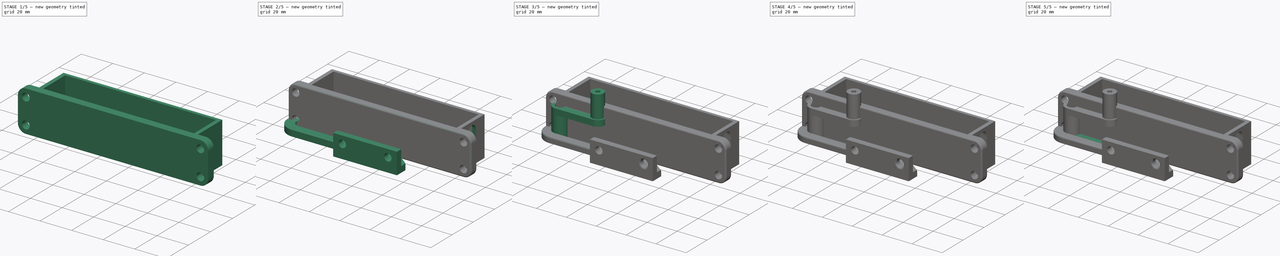
[diagram: build sequence overview — one tinted view per stage of 5, left to right]
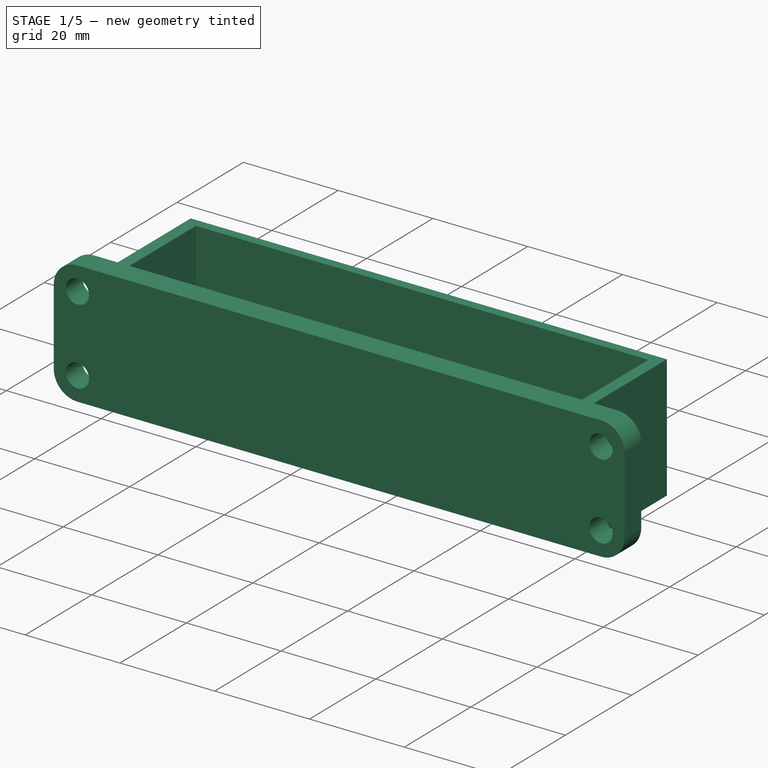
[diagram: stage 1 of 5 — iso view after this stage's code; geometry added in this stage tinted green]
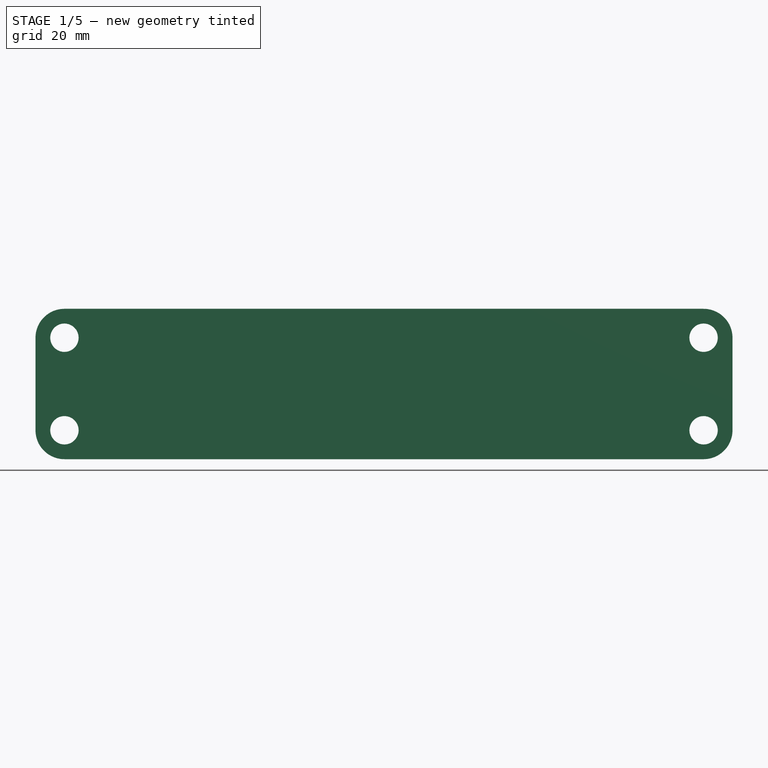
[diagram: stage 1 of 5 — front view after this stage's code; geometry added in this stage tinted green]
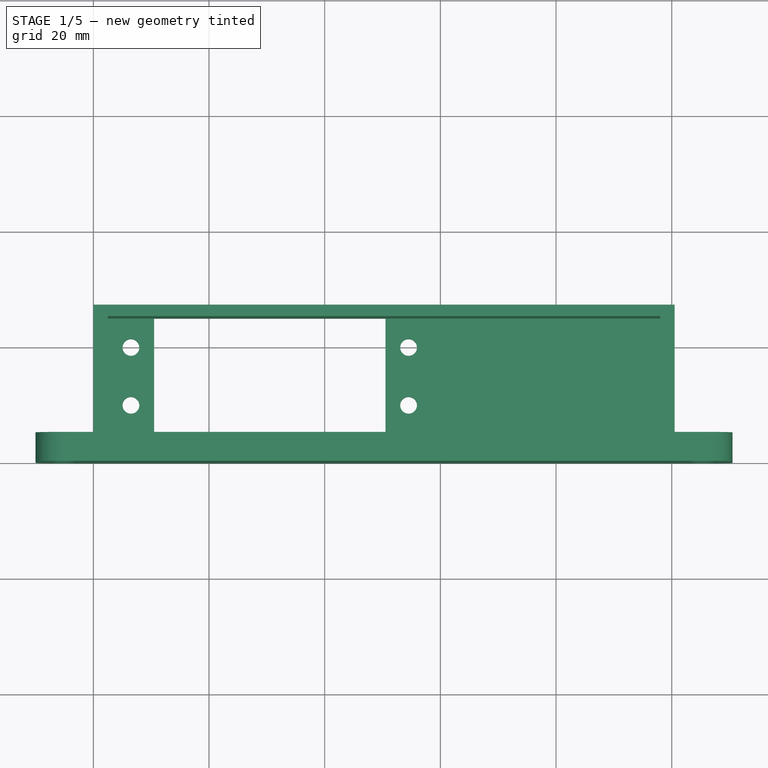
[diagram: stage 1 of 5 — top view after this stage's code; geometry added in this stage tinted green]
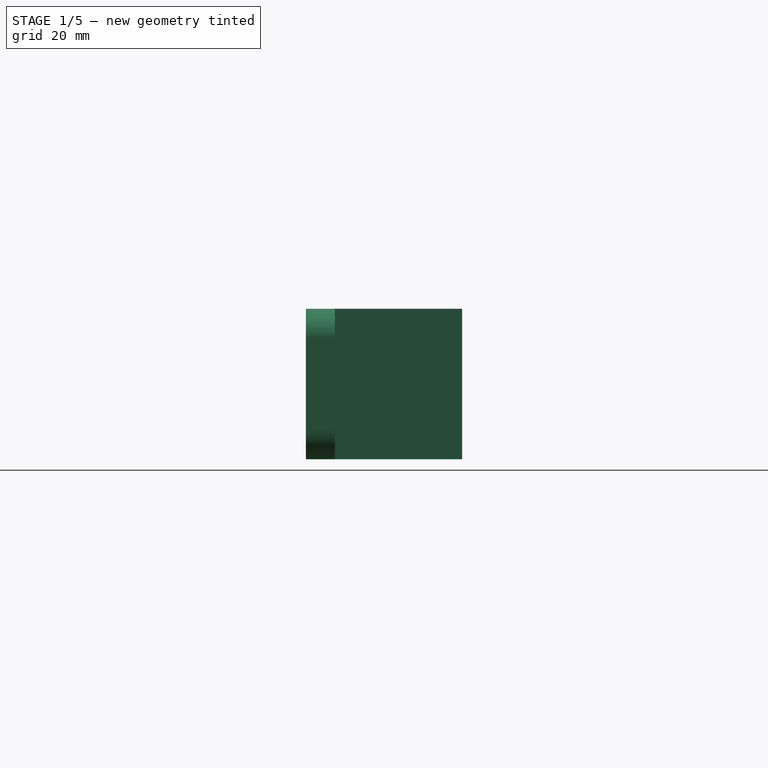
[diagram: stage 1 of 5 — right view after this stage's code; geometry added in this stage tinted green]
FCSTD DOCUMENT  (FreeCAD 0.20R29177 +426 (Git))
Label: blindOpener
License: All rights reserved
LicenseURL: http://en.wikipedia.org/wiki/All_rights_reserved
objects: Sketcher::SketchObject×18, PartDesign::Pad×14, PartDesign::Body×6, PartDesign::Fillet×5, PartDesign::Pocket×2, Spreadsheet::Sheet×1, PartDesign::Revolution×1, PartDesign::PolarPattern×1
note: 69 computed .brp shape members not serialized (recipe doc carries the construction recipe); baked Part::Feature solids carry a one-line shape summary decoded from their .brp

FEATURE [Spreadsheet::Sheet] Spreadsheet
  cells = A2=servoWidth; B2(servoWidth)=40; A3=servoHeight; B3(servoHeight)=20; A4=servoScrewYDist; B4(servoScrewYDist)=10; A5=servoToFirstScrew; B5(servoToFirstScrew)=5; A6=servoArmHolderWidth; B6(servoArmHolderWidth)=8; A7=servoHolderThickness; B7(servoHolderThickness)=3; A8=serverToFirstScrewDistY; B8(serverToFirstScrewDistY)==servoHeight + servoHolderThickness - servoToFirstScrew; C8=calculated; A10=m3ScrewRTight; B10(m3ScrewRTight)=1.45; A11=servoArmHolderSideGuardWidth; B11(servoArmHolderSideGuardWidth)==2 + 0.5; A12=totoalServerArmSideWidth; B12(totoalServerArmSideWidth)==servoArmHolderSideGuardWidth + servoArmHolderWidth; D12=servoArmJoinLen; E12(servoArmJoinLen)=15; A13=totalHoderHeight; B13(totalHoderHeight)==servoHolderBottomHeight + servoHeight; A15=totalHolderWidth; B15(totalHolderWidth)==servoWidth + totoalServerArmSideWidth * 2; A16=servoHolderScrewToInnerX; B16(servoHolderScrewToInnerX)=4; A18=servoHolderBottomHeight; B18(servoHolderBottomHeight)==servoHolderThickness + 2; A20=servoBottomSupportLen; B20(servoBottomSupportLen)=6; A21=servoBottomAttachmentLen; B21(servoBottomAttachmentLen)=10; A24=servoArmHeadHoleR; B24(servoArmHeadHoleR)==6 / 2 - 0.05; D24=3 is too lose; E24=2.90 is a bit too tight; A25=servoArmHeadScrewR; B25(servoArmHeadScrewR)=1.5; A26=servoArmHeadOurterR; B26(servoArmHeadOurterR)==servoArmHeadHoleR + 2; A27=servoArmLen; B27(servoArmLen)=25; A28=servoArmThickness; B28(servoArmThickness)=4; A29=servoArmHeadHoleOverLip; B29(servoArmHeadHoleOverLip)=0.2; A31=servoArmPushRodR; B31(servoArmPushRodR)=4; A32=servoArmPushRodLen; B32(servoArmPushRodLen)==30 + servoArmThickness; A35=controlArmLen; B35(controlArmLen)=30; A36=m3PassFreeR; B36(m3PassFreeR)==m3ScrewRTight + 0.5; A40=bottomPlatWidth; B40(bottomPlatWidth)=40; A41=bottomPlatHeight; B41(bottomPlatHeight)=10; A42=bottomPlatScrewY; B42(bottomPlatScrewY)=6; A43=bottomPlatPad; B43(bottomPlatPad)=3; A44=bottomPlatJointHeight; B44(bottomPlatJointHeight)==servoArmPushRodR + bottomPlatPad + 2; A47=raspberryPiLen; B47(raspberryPiLen)=50; A49=totalHolderWidthWithPiCase; B49(totalHolderWidthWithPiCase)==totalHolderWidth + raspberryPiLen - totoalServerArmSideWidth; A50=totalHolderHeightWithPiCase; B50(totalHolderHeightWithPiCase)==servoBottomSupportLen + servoBottomAttachmentLen * 2; A54=bottomAttachmentScrewHoleYLower; B54(bottomAttachmentScrewHoleYLower)==servoBottomSupportLen + servoBottomAttachmentLen / 2; A55=bottomAttachmentScrewHoleUpper; B55(bottomAttachmentScrewHoleUpper)==totalHolderHeightWithPiCase - servoBottomAttachmentLen / 2; A59=slidingPlateSlideGap; B59(slidingPlateSlideGap)==servoArmPushRodR + 0.25; A60=slidingPlateSlideLen; B60(slidingPlateSlideLen)==servoArmLen + 20; D60=was servoArmLen + 10=35, changed to +20; A61=slidingPlateSliderWidth; B61(slidingPlateSliderWidth)=6; A62=slidingPlateSliderPad; B62(slidingPlateSliderPad)=4; A63=slidingPlateAttachementOverWidth; B63(slidingPlateAttachementOverWidth)=20; D63=was 40, too long; A64=slidingPlateBaseAttachementScrewToSide; B64(slidingPlateBaseAttachementScrewToSide)=6; A65=slidingPlateAttachementStartPos; B65(slidingPlateAttachementStartPos)==slidingPlateSlideLen / 2 + 10; D65=slidingPlatAttachmentLegHeight; E65(slidingPlatAttachmentLegHeight)=8; A66=slidingPlateAttachmentWidth; B66(slidingPlateAttachmentWidth)=42; A68=woodScrewPassR; B68(woodScrewPassR)=2.45; A71=raspberryPiWidth; B71(raspberryPiWidth)=18; A72=raspberryPiHeight; B72(raspberryPiHeight)=46; A75=raspberryPiCaseBottomHoleHeight; B75(raspberryPiCaseBottomHoleHeight)=10
FEATURE [Sketcher::SketchObject] Sketch  label="SketchServoPlat"
  FullyConstrained = true
  MapMode = 5
  Support = -> [XY_Plane]
  expr: Constraints[18] = Spreadsheet.totoalServerArmSideWidth
  expr: Constraints[19] = Spreadsheet.servoHeight
  expr: Constraints[20] = Spreadsheet.servoHeight
  expr: Constraints[21] = Spreadsheet.servoWidth
  expr: Constraints[22] = Spreadsheet.servoHolderBottomHeight
  expr: Constraints[25] = Spreadsheet.servoHolderBottomHeight + Spreadsheet.servoToFirstScrew
  expr: Constraints[26] = Spreadsheet.servoHolderBottomHeight + Spreadsheet.servoToFirstScrew
  expr: Constraints[31] = Spreadsheet.m3ScrewRTight
  expr: Constraints[32] = Spreadsheet.m3ScrewRTight
  expr: Constraints[33] = Spreadsheet.m3ScrewRTight
  expr: Constraints[34] = Spreadsheet.m3ScrewRTight
  expr: Constraints[51] = Spreadsheet.servoHolderScrewToInnerX
  expr: Constraints[52] = Spreadsheet.servoHolderScrewToInnerX
  expr: Constraints[53] = Spreadsheet.servoScrewYDist
  expr: Constraints[54] = Spreadsheet.servoScrewYDist
  expr: Constraints[55] = Spreadsheet.raspberryPiLen
  sketch-geometry (22):
    g0: LineSegment StartX=0 StartY=25 StartZ=0 EndX=10.5 EndY=25 EndZ=0
    g1: LineSegment StartX=100.5 StartY=25 StartZ=0 EndX=100.5 EndY=0 EndZ=0
    g2: LineSegment StartX=100.5 StartY=0 StartZ=0 EndX=0 EndY=0 EndZ=0
    g3: LineSegment StartX=0 StartY=0 StartZ=0 EndX=0 EndY=25 EndZ=0
    g4: LineSegment StartX=50.5 StartY=25 StartZ=0 EndX=50.5 EndY=5 EndZ=0
    g5: LineSegment StartX=50.5 StartY=5 StartZ=0 EndX=10.5 EndY=5 EndZ=0
    g6: LineSegment StartX=10.5 StartY=5 StartZ=0 EndX=10.5 EndY=25 EndZ=0
    g7: LineSegment StartX=50.5 StartY=25 StartZ=0 EndX=100.5 EndY=25 EndZ=0
    g8: LineSegment StartX=6.5 StartY=20 StartZ=0 EndX=6.5 EndY=10 EndZ=0
    g9: LineSegment StartX=54.5 StartY=20 StartZ=0 EndX=54.5 EndY=10 EndZ=0
    g10: Circle CenterX=6.5 CenterY=20 CenterZ=0 NormalX=0 NormalY=0 NormalZ=1 AngleXU=0 Radius=1.45
    g11: Circle CenterX=6.5 CenterY=10 CenterZ=0 NormalX=0 NormalY=0 NormalZ=1 AngleXU=0 Radius=1.45
    g12: Circle CenterX=54.5 CenterY=20 CenterZ=0 NormalX=0 NormalY=0 NormalZ=1 AngleXU=0 Radius=1.45
    g13: Circle CenterX=54.5 CenterY=10 CenterZ=0 NormalX=0 NormalY=0 NormalZ=1 AngleXU=0 Radius=1.45
    g14: LineSegment StartX=0 StartY=25 StartZ=0 EndX=0 EndY=0 EndZ=0
    g15: LineSegment StartX=0 StartY=0 StartZ=0 EndX=100.5 EndY=0 EndZ=0
    g16: LineSegment StartX=100.5 StartY=0 StartZ=0 EndX=100.5 EndY=25 EndZ=0
    g17: LineSegment StartX=100.5 StartY=25 StartZ=0 EndX=50.5 EndY=25 EndZ=0
    g18: LineSegment StartX=50.5 StartY=25 StartZ=0 EndX=50.5 EndY=5 EndZ=0
    g19: LineSegment StartX=50.5 StartY=5 StartZ=0 EndX=10.5 EndY=5 EndZ=0
    g20: LineSegment StartX=10.5 StartY=5 StartZ=0 EndX=10.5 EndY=25 EndZ=0
    g21: LineSegment StartX=10.5 StartY=25 StartZ=0 EndX=0 EndY=25 EndZ=0
  constraints (56):
    c: Coincident(g7,g1)
    c: Coincident(g1,g2)
    c: Coincident(g2,g3)
    c: Coincident(g3,g0)
    c: Horizontal(g0)
    c: Horizontal(g2)
    c: Vertical(g1)
    c: Vertical(g3)
    c: PointOnObject(g0,g-2)
    c: PointOnObject(g1,g-1)
    c: Coincident(g4,g5)
    c: Coincident(g5,g6)
    c: Horizontal(g5)
    c: Vertical(g4)
    c: Vertical(g6)
    c: Coincident(g6,g0)
    c: Coincident(g4,g7)
    c: Horizontal(g7)
    c: DistanceX(g0,g0) = 10.5
    c: DistanceY(g6,g6) = 20
    c: DistanceY(g4,g4) = 20
    c: DistanceX(g5,g5) = 40
    c: DistanceY(g2,g5) = 5
    c: Vertical(g8)
    c: Vertical(g9)
    c: DistanceY(g2,g8) = 10
    c: DistanceY(g2,g9) = 10
    c: Coincident(g10,g8)
    c: Coincident(g11,g8)
    c: Coincident(g12,g9)
    c: Coincident(g13,g9)
    c: Radius(g10) = 1.45
    c: Radius(g11) = 1.45
    c: Radius(g12) = 1.45
    c: Radius(g13) = 1.45
    c: Coincident(g14,g0)
    c: Coincident(g14,g2)
    c: Coincident(g15,g14)
    c: Coincident(g15,g1)
    c: Coincident(g16,g15)
    c: Coincident(g16,g1)
    c: Coincident(g17,g16)
    c: Coincident(g17,g4)
    c: Coincident(g18,g17)
    c: Coincident(g18,g4)
    c: Coincident(g19,g18)
    c: Coincident(g19,g5)
    c: Coincident(g20,g19)
    c: Coincident(g20,g0)
    c: Coincident(g21,g20)
    c: Coincident(g21,g14)
    c: DistanceX(g10,g20) = 4
    c: DistanceX(g17,g12) = 4
    c: DistanceY(g8,g8) = 10
    c: DistanceY(g9,g9) = 10
    c: DistanceX(g17,g17) = 50
FEATURE [PartDesign::Pad] Pad
  Direction = (0,0,1)
  Length = 3
  Length2 = 10
  Profile = -> Sketch
  ReferenceAxis = -> Sketch [N_Axis]
  Type = 0
  expr: Length = Spreadsheet.servoHolderThickness
FEATURE [Sketcher::SketchObject] Sketch001  label="Sketch001SeperationWalls"
  FullyConstrained = true
  MapMode = 5
  Support = -> [XY_Plane]
  expr: Constraints[11] = Spreadsheet.totalHolderWidthWithPiCase
  expr: Constraints[19] = Spreadsheet.servoArmHolderSideGuardWidth
  expr: Constraints[2] = Spreadsheet.servoArmHolderSideGuardWidth
  expr: Constraints[3] = Spreadsheet.totalHoderHeight
  expr: Constraints[4] = Spreadsheet.totalHoderHeight + 2
  sketch-geometry (8):
    g0: LineSegment StartX=2.5 StartY=25 StartZ=0 EndX=2.5 EndY=0 EndZ=0
    g1: LineSegment StartX=2.5 StartY=0 StartZ=0 EndX=0 EndY=0 EndZ=0
    g2: LineSegment StartX=0 StartY=0 StartZ=0 EndX=0 EndY=27 EndZ=0
    g3: LineSegment StartX=0 StartY=27 StartZ=0 EndX=100.5 EndY=27 EndZ=0
    g4: LineSegment StartX=100.5 StartY=27 StartZ=0 EndX=100.5 EndY=0 EndZ=0
    g5: LineSegment StartX=100.5 StartY=0 StartZ=0 EndX=98 EndY=0 EndZ=0
    g6: LineSegment StartX=98 StartY=0 StartZ=0 EndX=98 EndY=25 EndZ=0
    g7: LineSegment StartX=2.5 StartY=25 StartZ=0 EndX=98 EndY=25 EndZ=0
  constraints (23):
    c: Coincident(g0,g1)
    c: Vertical(g0)
    c: DistanceX(g1,g0) = 2.5
    c: DistanceY(g0,g0) = 25
    c: DistanceY(g1,g2) = 27
    c: Coincident(g2,g1)
    c: Vertical(g2)
    c: Coincident(g1,g-1)
    c: Horizontal(g1)
    c: Coincident(g3,g2)
    c: Horizontal(g3)
    c: DistanceX(g3,g3) = 100.5
    c: Coincident(g4,g3)
    c: PointOnObject(g4,g-1)
    c: Vertical(g4)
    c: Coincident(g5,g4)
    c: PointOnObject(g5,g-1)
    c: Coincident(g6,g5)
    c: Vertical(g6)
    c: DistanceX(g5,g5) = 2.5
    c: Coincident(g7,g0)
    c: Coincident(g7,g6)
    c: Horizontal(g7)
FEATURE [Sketcher::SketchObject] Sketch002  label="Sketch002BottomWall"
  FullyConstrained = true
  MapMode = 5
  Support = -> [XY_Plane]
  expr: Constraints[10] = Spreadsheet.servoHolderBottomHeight
  expr: Constraints[9] = Spreadsheet.totalHolderWidthWithPiCase
  sketch-geometry (4):
    g0: LineSegment StartX=0 StartY=0 StartZ=0 EndX=100.5 EndY=0 EndZ=0
    g1: LineSegment StartX=100.5 StartY=0 StartZ=0 EndX=100.5 EndY=5 EndZ=0
    g2: LineSegment StartX=100.5 StartY=5 StartZ=0 EndX=0 EndY=5 EndZ=0
    g3: LineSegment StartX=0 StartY=5 StartZ=0 EndX=0 EndY=0 EndZ=0
  constraints (11):
    c: Coincident(g0,g1)
    c: Coincident(g1,g2)
    c: Coincident(g2,g3)
    c: Coincident(g3,g0)
    c: Horizontal(g0)
    c: Horizontal(g2)
    c: Vertical(g1)
    c: Vertical(g3)
    c: Coincident(g0,g-1)
    c: DistanceX(g0,g0) = 100.5
    c: DistanceY(g3,g3) = 5
FEATURE [PartDesign::Pad] Pad002
  BaseFeature = -> Pad
  Direction = (0,0,1)
  Length = 6
  Length2 = 10
  Profile = -> Sketch002
  ReferenceAxis = -> Sketch002 [N_Axis]
  Type = 0
  expr: Length = Spreadsheet.servoBottomSupportLen
FEATURE [Sketcher::SketchObject] Sketch003  label="Sketch003MidSrvslip"
  AttachmentOffset = pos=(0,0,3) rot=(0,0,1;0rad)
  FullyConstrained = true
  MapMode = 5
  Placement = pos=(0,0,3) rot=(0,0,1;0rad)
  Support = -> [XY_Plane]
  expr: .AttachmentOffset.Base.z = Spreadsheet.servoHolderThickness
  expr: Constraints[10] = Spreadsheet.servoHolderBottomHeight + Spreadsheet.servoHeight / 2 + 0.5
  expr: Constraints[11] = Spreadsheet.totalHolderWidth
  expr: Constraints[9] = Spreadsheet.servoHolderBottomHeight + Spreadsheet.servoHeight / 2 - 0.5
  sketch-geometry (4):
    g0: LineSegment StartX=0 StartY=15.5 StartZ=0 EndX=61 EndY=15.5 EndZ=0
    g1: LineSegment StartX=61 StartY=15.5 StartZ=0 EndX=61 EndY=14.5 EndZ=0
    g2: LineSegment StartX=61 StartY=14.5 StartZ=0 EndX=0 EndY=14.5 EndZ=0
    g3: LineSegment StartX=0 StartY=14.5 StartZ=0 EndX=0 EndY=15.5 EndZ=0
  constraints (12):
    c: Coincident(g0,g1)
    c: Coincident(g1,g2)
    c: Coincident(g2,g3)
    c: Coincident(g3,g0)
    c: Horizontal(g0)
    c: Horizontal(g2)
    c: Vertical(g1)
    c: Vertical(g3)
    c: PointOnObject(g0,g-2)
    c: DistanceY(g-1,g2) = 14.5
    c: DistanceY(g-1,g0) = 15.5
    c: DistanceX(g2,g2) = 61
FEATURE [PartDesign::Pocket] Pocket
  BaseFeature = -> Pad002
  Direction = (0,0,-1)
  Length = 1
  Length2 = 5
  Profile = -> Sketch003
  ReferenceAxis = -> Sketch003 [N_Axis]
  Type = 0
FEATURE [PartDesign::Pad] Pad003
  BaseFeature = -> Pocket
  Direction = (0,0,1)
  Length = 26
  Length2 = 10
  Profile = -> Sketch001
  ReferenceAxis = -> Sketch001 [N_Axis]
  Type = 0
  expr: Length = Spreadsheet.totalHolderHeightWithPiCase
FEATURE [Sketcher::SketchObject] Sketch004  label="Sketch004BottomAttachement"
  FullyConstrained = false
  MapMode = 5
  Placement = pos=(0,0,0) rot=(1,0,0;1.5708rad)
  Support = -> [XZ_Plane]
  expr: Constraints[0] = Spreadsheet.totalHolderWidthWithPiCase + Spreadsheet.servoBottomAttachmentLen
  expr: Constraints[13] = Spreadsheet.servoBottomAttachmentLen / 2
  expr: Constraints[14] = Spreadsheet.bottomAttachmentScrewHoleUpper
  expr: Constraints[16] = Spreadsheet.servoBottomAttachmentLen
  expr: Constraints[1] = Spreadsheet.servoBottomAttachmentLen / 2
  expr: Constraints[20] = Spreadsheet.servoBottomAttachmentLen / 2
  expr: Constraints[22] = Spreadsheet.servoBottomAttachmentLen / 2
  expr: Constraints[2] = Spreadsheet.m3ScrewRTight + 1
  expr: Constraints[3] = Spreadsheet.woodScrewPassR
  sketch-geometry (17):
    g0: LineSegment StartX=110.5 StartY=21 StartZ=0 EndX=110.5 EndY=5 EndZ=0
    g1: Circle CenterX=-5 CenterY=5 CenterZ=0 NormalX=0 NormalY=0 NormalZ=1 AngleXU=0 Radius=2.45
    g2: Circle CenterX=105.5 CenterY=5 CenterZ=0 NormalX=0 NormalY=0 NormalZ=1 AngleXU=0 Radius=2.45
    g3: Circle CenterX=-5 CenterY=21 CenterZ=0 NormalX=0 NormalY=0 NormalZ=1 AngleXU=0 Radius=2.45
    g4: Circle CenterX=105.5 CenterY=21 CenterZ=0 NormalX=0 NormalY=0 NormalZ=1 AngleXU=0 Radius=2.45
    g5: LineSegment StartX=-5 StartY=5 StartZ=0 EndX=-5 EndY=21 EndZ=0
    g6: LineSegment StartX=-5 StartY=21 StartZ=0 EndX=105.5 EndY=21 EndZ=0
    g7: LineSegment StartX=105.5 StartY=21 StartZ=0 EndX=105.5 EndY=5 EndZ=0
    g8: LineSegment StartX=-10 StartY=21 StartZ=0 EndX=-10 EndY=5 EndZ=0
    g9: LineSegment StartX=105.5 StartY=5 StartZ=0 EndX=-5 EndY=5 EndZ=0
    g10: LineSegment StartX=-10 StartY=-0.424397 StartZ=0 EndX=110.5 EndY=-0.424397 EndZ=0
    g11: LineSegment StartX=-5 StartY=0 StartZ=0 EndX=105.5 EndY=0 EndZ=0
    g12: LineSegment StartX=-5 StartY=26 StartZ=0 EndX=105.5 EndY=26 EndZ=0
    g13: ArcOfCircle CenterX=-5 CenterY=21 CenterZ=0 NormalX=0 NormalY=0 NormalZ=1 AngleXU=0 Radius=5 StartAngle=1.5708 EndAngle=3.14159
    g14: ArcOfCircle CenterX=-5 CenterY=5 CenterZ=0 NormalX=0 NormalY=0 NormalZ=1 AngleXU=0 Radius=5 StartAngle=3.14159 EndAngle=4.71239
    g15: ArcOfCircle CenterX=105.5 CenterY=21 CenterZ=0 NormalX=0 NormalY=0 NormalZ=1 AngleXU=0 Radius=5 StartAngle=0 EndAngle=1.5708
    g16: ArcOfCircle CenterX=105.5 CenterY=5 CenterZ=0 NormalX=0 NormalY=0 NormalZ=1 AngleXU=0 Radius=5 StartAngle=4.71239 EndAngle=6.28319
  constraints (38):
    c: DistanceX(g-1,g10) = 110.5
    c: DistanceX(g2,g10) = 5
    c: Radius(g1) = 2.45
    c: Radius(g2) = 2.45
    c: Equal(g3,g1)
    c: Coincident(g5,g1)
    c: Coincident(g5,g3)
    c: Coincident(g6,g3)
    c: Coincident(g6,g4)
    c: Coincident(g7,g4)
    c: Coincident(g7,g2)
    c: Vertical(g7)
    c: Equal(g4,g3)
    c: DistanceY(g-1,g1) = 5
    c: DistanceY(g-1,g3) = 21
    c: Vertical(g8)
    c: DistanceX(g10,g-1) = 10
    c: Coincident(g9,g2)
    c: Coincident(g9,g1)
    c: Horizontal(g9)
    c: DistanceX(g1,g-1) = 5
    c: Coincident(g13,g3)
    c: Radius(g13) = 5
    c: Horizontal(g12)
    c: Coincident(g14,g1)
    c: Equal(g13,g14)
    c: Coincident(g15,g4)
    c: Tangent(g0,g15) = 1.5708
    c: Coincident(g16,g2)
    c: Horizontal(g6)
    c: Tangent(g15,g12) = 1.5708
    c: Tangent(g16,g0) = 1.5708
    c: Tangent(g16,g11) = -1.5708
    c: Horizontal(g11)
    c: Tangent(g13,g12) = 1.5708
    c: Tangent(g8,g13) = -1.5708
    c: Tangent(g8,g14) = -1.5708
    c: Tangent(g11,g14) = -1.5708
FEATURE [PartDesign::Pad] Pad004
  BaseFeature = -> Pad003
  Direction = (0,-1,-2e-16)
  Length = 5
  Length2 = 10
  Profile = -> Sketch004
  ReferenceAxis = -> Sketch004 [N_Axis]
  Reversed = true
  Type = 0
  expr: Length = Spreadsheet.servoHolderBottomHeight
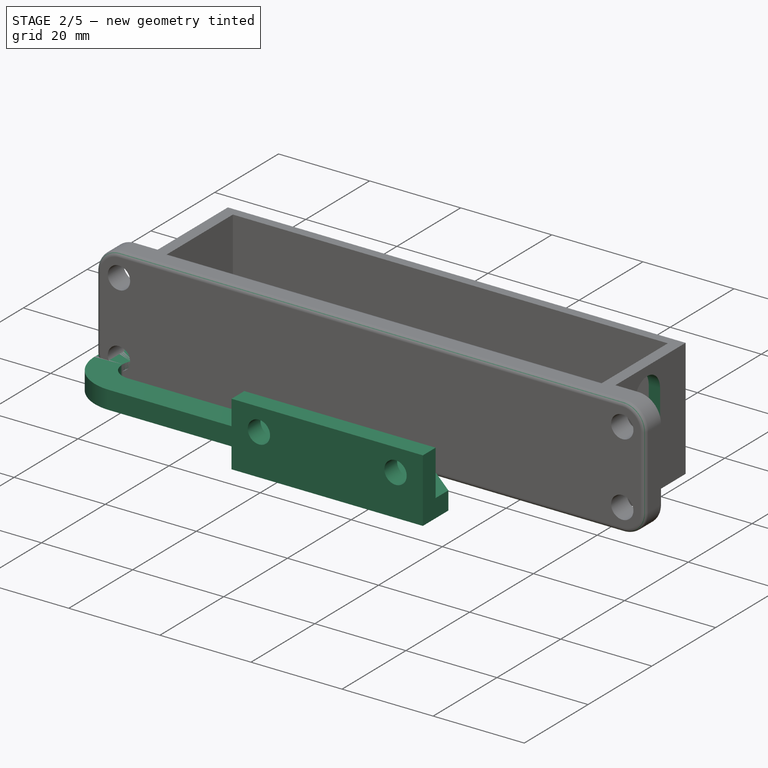
[diagram: stage 2 of 5 — iso view after this stage's code; geometry added in this stage tinted green]
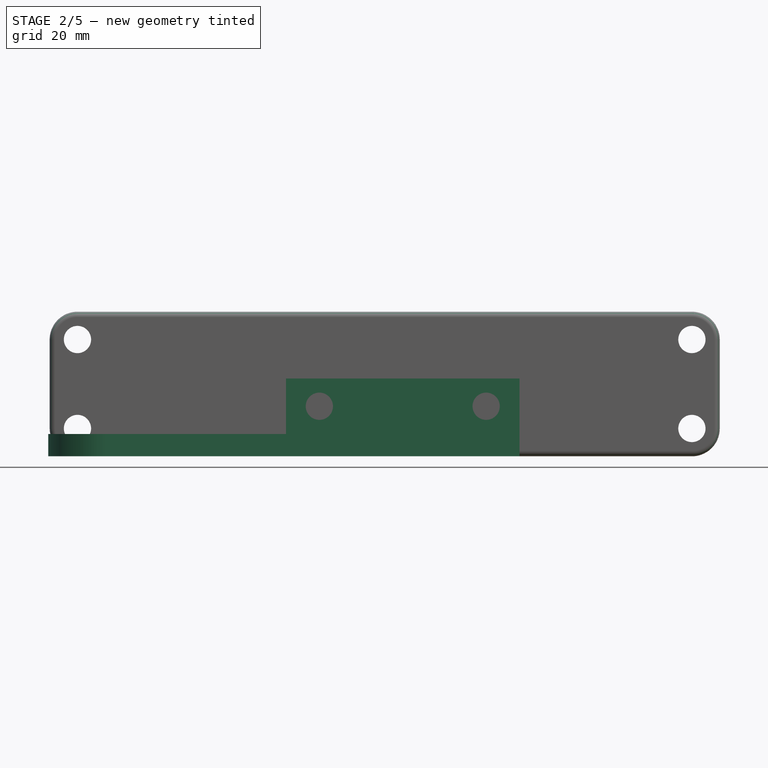
[diagram: stage 2 of 5 — front view after this stage's code; geometry added in this stage tinted green]
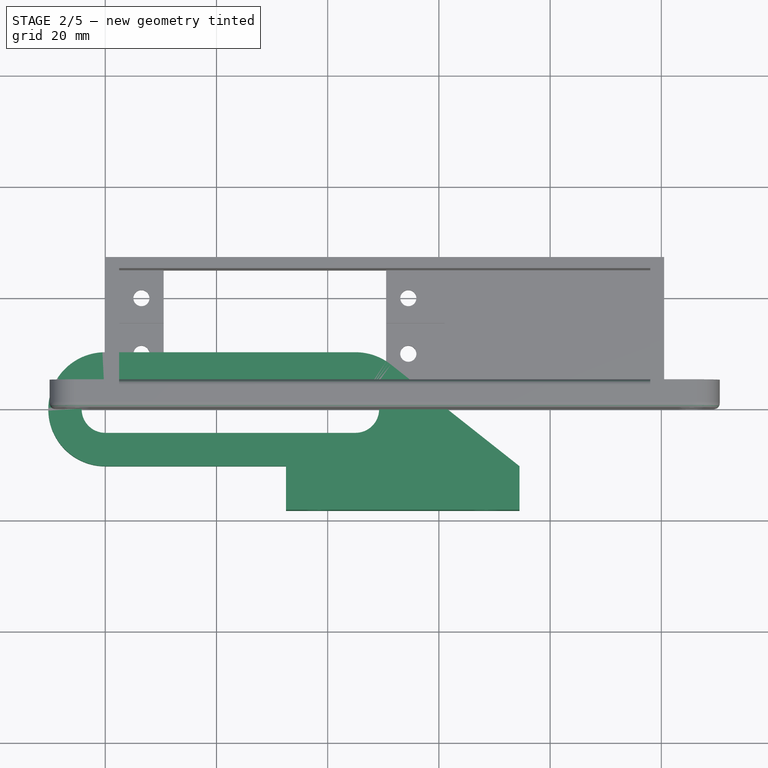
[diagram: stage 2 of 5 — top view after this stage's code; geometry added in this stage tinted green]
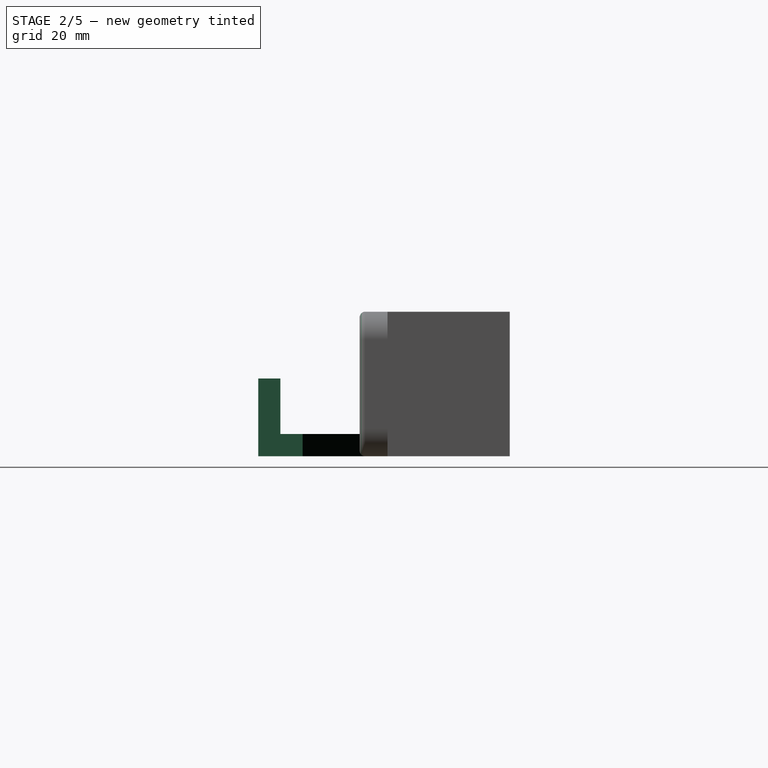
[diagram: stage 2 of 5 — right view after this stage's code; geometry added in this stage tinted green]
FEATURE [PartDesign::Body] Body003  label="Body003BasePlate_NotUsed"
  Group = -> [Sketch010,Sketch011,Pad009,Pad010,Fillet,Fillet001]
  Origin = -> Origin003
  Tip = -> Fillet001
FEATURE [PartDesign::Fillet] Fillet002
  Base = -> Pad004 [Face47]
  BaseFeature = -> Pad004
  Radius = 1
  SupportTransform = false
  UseAllEdges = false
FEATURE [Sketcher::SketchObject] Sketch012
  FullyConstrained = true
  MapMode = 5
  Support = -> [XY_Plane004]
  expr: Constraints[15] = Spreadsheet.slidingPlateSlideLen
  expr: Constraints[16] = Spreadsheet.slidingPlateSliderWidth
  expr: Constraints[20] = Spreadsheet.slidingPlateAttachmentWidth
  expr: Constraints[21] = Spreadsheet.slidingPlateAttachementStartPos
  expr: Constraints[26] = Spreadsheet.slidingPlatAttachmentLegHeight
  expr: Constraints[7] = Spreadsheet.slidingPlateSlideLen
  expr: Constraints[8] = Spreadsheet.slidingPlateSlideGap
  sketch-geometry (12):
    g0: ArcOfCircle CenterX=0 CenterY=0 CenterZ=0 NormalX=0 NormalY=0 NormalZ=1 AngleXU=0 Radius=4.25 StartAngle=1.5708 EndAngle=4.71239
    g1: ArcOfCircle CenterX=45 CenterY=0 CenterZ=0 NormalX=0 NormalY=0 NormalZ=1 AngleXU=0 Radius=4.25 StartAngle=4.71239 EndAngle=7.85398
    g2: LineSegment StartX=-8e-16 StartY=-4.25 StartZ=0 EndX=45 EndY=-4.25 EndZ=0
    g3: LineSegment StartX=45 StartY=4.25 StartZ=0 EndX=0 EndY=4.25 EndZ=0
    g4: ArcOfCircle CenterX=0 CenterY=0 CenterZ=0 NormalX=0 NormalY=0 NormalZ=1 AngleXU=0 Radius=10.25 StartAngle=1.5708 EndAngle=4.71239
    g5: ArcOfCircle CenterX=45 CenterY=0 CenterZ=0 NormalX=0 NormalY=0 NormalZ=1 AngleXU=0 Radius=10.25 StartAngle=0.90198 EndAngle=1.5708
    g6: LineSegment StartX=-1.9e-15 StartY=-10.25 StartZ=0 EndX=32.5 EndY=-10.25 EndZ=0
    g7: LineSegment StartX=45 StartY=10.25 StartZ=0 EndX=0 EndY=10.25 EndZ=0
    g8: LineSegment StartX=74.5 StartY=-10.25 StartZ=0 EndX=51.3556 EndY=8.0417 EndZ=0
    g9: LineSegment StartX=32.5 StartY=-18.25 StartZ=0 EndX=74.5 EndY=-18.25 EndZ=0
    g10: LineSegment StartX=32.5 StartY=-18.25 StartZ=0 EndX=32.5 EndY=-10.25 EndZ=0
    g11: LineSegment StartX=74.5 StartY=-10.25 StartZ=0 EndX=74.5 EndY=-18.25 EndZ=0
  constraints (30):
    c: Tangent(g0,g2) = -1.5708
    c: Tangent(g2,g1) = -1.5708
    c: Tangent(g1,g3) = -1.5708
    c: Tangent(g3,g0) = -1.5708
    c: Equal(g0,g1)
    c: Coincident(g0,g-1)
    c: PointOnObject(g1,g-1)
    c: DistanceX(g0,g1) = 45
    c: Radius(g1) = 4.25
    c: Tangent(g4,g6) = -1.5708
    c: Tangent(g5,g7) = -1.5708
    c: Tangent(g7,g4) = -1.5708
    c: Equal(g4,g5)
    c: Coincident(g4,g0)
    c: PointOnObject(g5,g-1)
    c: DistanceX(g7,g7) = 45
    c: DistanceY(g1,g5) = 6
    c: Horizontal(g6)
    c: Tangent(g5,g8) = -1.5708
    c: Horizontal(g9)
    c: DistanceX(g9,g9) = 42
    c: DistanceX(g4,g9) = 32.5
    c: Coincident(g10,g9)
    c: Vertical(g10)
    c: Coincident(g6,g10)
    c: Coincident(g11,g9)
    c: DistanceY(g10,g10) = 8
    c: Vertical(g11)
    c: Equal(g11,g10)
    c: Coincident(g8,g11)
FEATURE [PartDesign::Pad] Pad011
  Direction = (0,0,1)
  Length = 4
  Length2 = 10
  Profile = -> Sketch012
  ReferenceAxis = -> Sketch012 [N_Axis]
  Type = 0
  expr: Length = Spreadsheet.slidingPlateSliderPad
FEATURE [Sketcher::SketchObject] Sketch013
  AttachmentOffset = pos=(32.5,4,18.25) rot=(0,0,1;0rad)
  FullyConstrained = true
  MapMode = 5
  Placement = pos=(32.5,-18.25,4) rot=(1,0,0;1.5708rad)
  Support = -> [XZ_Plane004]
  expr: .AttachmentOffset.Base.x = Spreadsheet.slidingPlateAttachementStartPos
  expr: .AttachmentOffset.Base.y = Spreadsheet.slidingPlateSliderPad
  expr: .AttachmentOffset.Base.z = Spreadsheet.slidingPlateSlideGap + Spreadsheet.slidingPlateSliderWidth + Spreadsheet.slidingPlatAttachmentLegHeight
  expr: Constraints[12] = Spreadsheet.slidingPlateBaseAttachementScrewToSide
  expr: Constraints[13] = Spreadsheet.slidingPlateBaseAttachementScrewToSide
  expr: Constraints[16] = Spreadsheet.woodScrewPassR
  expr: Constraints[17] = Spreadsheet.woodScrewPassR
  expr: Constraints[8] = Spreadsheet.slidingPlateAttachmentWidth
  expr: Constraints[9] = Spreadsheet.servoBottomAttachmentLen
  sketch-geometry (7):
    g0: LineSegment StartX=0 StartY=10 StartZ=0 EndX=42 EndY=10 EndZ=0
    g1: LineSegment StartX=42 StartY=10 StartZ=0 EndX=42 EndY=0 EndZ=0
    g2: LineSegment StartX=42 StartY=0 StartZ=0 EndX=0 EndY=0 EndZ=0
    g3: LineSegment StartX=0 StartY=0 StartZ=0 EndX=0 EndY=10 EndZ=0
    g4: LineSegment StartX=6 StartY=5 StartZ=0 EndX=36 EndY=5 EndZ=0
    g5: Circle CenterX=6 CenterY=5 CenterZ=0 NormalX=0 NormalY=0 NormalZ=1 AngleXU=0 Radius=2.45
    g6: Circle CenterX=36 CenterY=5 CenterZ=0 NormalX=0 NormalY=0 NormalZ=1 AngleXU=0 Radius=2.45
  constraints (18):
    c: Coincident(g0,g1)
    c: Coincident(g1,g2)
    c: Coincident(g2,g3)
    c: Coincident(g3,g0)
    c: Horizontal(g0)
    c: Horizontal(g2)
    c: Vertical(g1)
    c: Vertical(g3)
    c: DistanceX(g2,g2) = 42
    c: DistanceY(g1,g1) = 10
    c: Coincident(g-1,g2)
    c: Symmetric(g0,g1,g4)
    c: DistanceX(g0,g4) = 6
    c: DistanceX(g4,g1) = 6
    c: Coincident(g5,g4)
    c: Coincident(g6,g4)
    c: Radius(g5) = 2.45
    c: Radius(g6) = 2.45
FEATURE [PartDesign::Pad] Pad012
  BaseFeature = -> Pad011
  Direction = (0,-1,-2e-16)
  Length = 4
  Length2 = 10
  Profile = -> Sketch013
  ReferenceAxis = -> Sketch013 [N_Axis]
  Reversed = true
  Type = 0
  expr: Length = Spreadsheet.slidingPlateSliderPad
FEATURE [PartDesign::Body] Body004  label="Body004SlideConnector"
  Group = -> [Sketch012,Pad011,Sketch013,Pad012,Fillet005]
  Origin = -> Origin004
  Tip = -> Fillet005
FEATURE [Sketcher::SketchObject] Sketch017
  AttachmentOffset = pos=(0,0,100.5) rot=(0,0,1;0rad)
  FullyConstrained = true
  MapMode = 5
  Placement = pos=(100.5,-2.23e-14,2.23e-14) rot=(0.57735,0.57735,0.57735;2.0944rad)
  Support = -> [YZ_Plane]
  expr: .AttachmentOffset.Base.z = Spreadsheet.totalHolderWidthWithPiCase
  expr: Constraints[7] = Spreadsheet.raspberryPiCaseBottomHoleHeight
  expr: Constraints[8] = Spreadsheet.totalHoderHeight / 2 + Spreadsheet.servoHolderBottomHeight / 2
  expr: Constraints[9] = Spreadsheet.raspberryPiCaseBottomHoleHeight
  sketch-geometry (4):
    g0: ArcOfCircle CenterX=15 CenterY=20 CenterZ=0 NormalX=0 NormalY=0 NormalZ=1 AngleXU=0 Radius=4 StartAngle=1e-16 EndAngle=3.14159
    g1: ArcOfCircle CenterX=15 CenterY=10 CenterZ=0 NormalX=0 NormalY=0 NormalZ=1 AngleXU=0 Radius=4 StartAngle=3.14159 EndAngle=6.28319
    g2: LineSegment StartX=11 StartY=20 StartZ=0 EndX=11 EndY=10 EndZ=0
    g3: LineSegment StartX=19 StartY=10 StartZ=0 EndX=19 EndY=20 EndZ=0
  constraints (10):
    c: Tangent(g0,g2) = -1.5708
    c: Tangent(g2,g1) = -1.5708
    c: Tangent(g1,g3) = -1.5708
    c: Tangent(g3,g0) = -1.5708
    c: Equal(g0,g1)
    c: Vertical(g2)
    c: Radius(g0) = 4
    c: DistanceY(g3,g3) = 10
    c: DistanceX(g-1,g1) = 15
    c: DistanceY(g-1,g1) = 10
FEATURE [PartDesign::Pocket] Pocket001
  BaseFeature = -> Fillet002
  Direction = (-1,2e-16,-3e-16)
  Length = 5
  Length2 = 5
  Profile = -> Sketch017
  ReferenceAxis = -> Sketch017 [N_Axis]
  Type = 0
FEATURE [PartDesign::Body] Body  label="BodyservoHolder"
  Group = -> [Sketch,Pad,Sketch001,Sketch002,Pad002,Sketch003,Pocket,Pad003,Sketch004,Pad004,Fillet002,Sketch017,Pocket001]
  Origin = -> Origin
  Tip = -> Pocket001
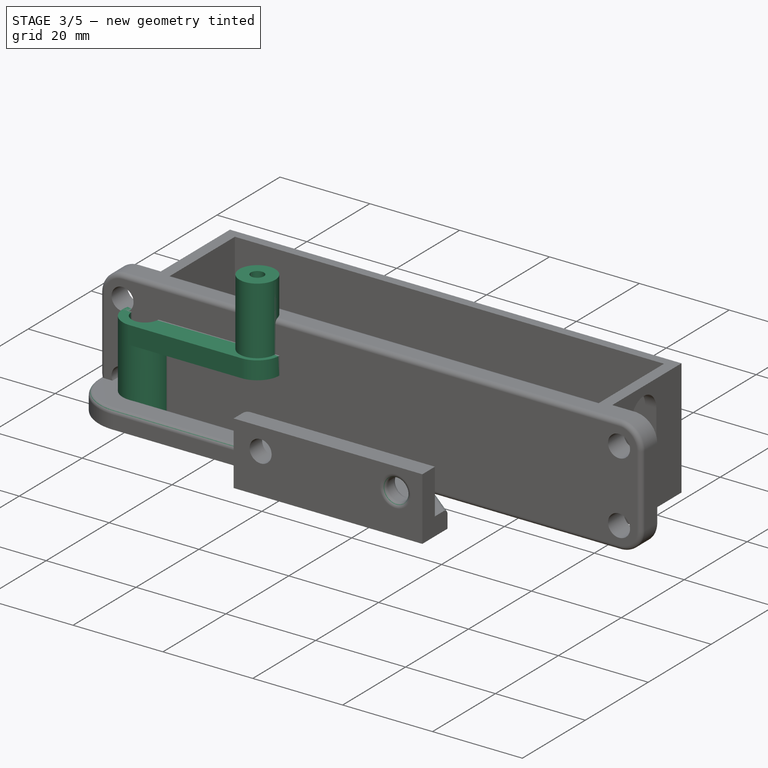
[diagram: stage 3 of 5 — iso view after this stage's code; geometry added in this stage tinted green]
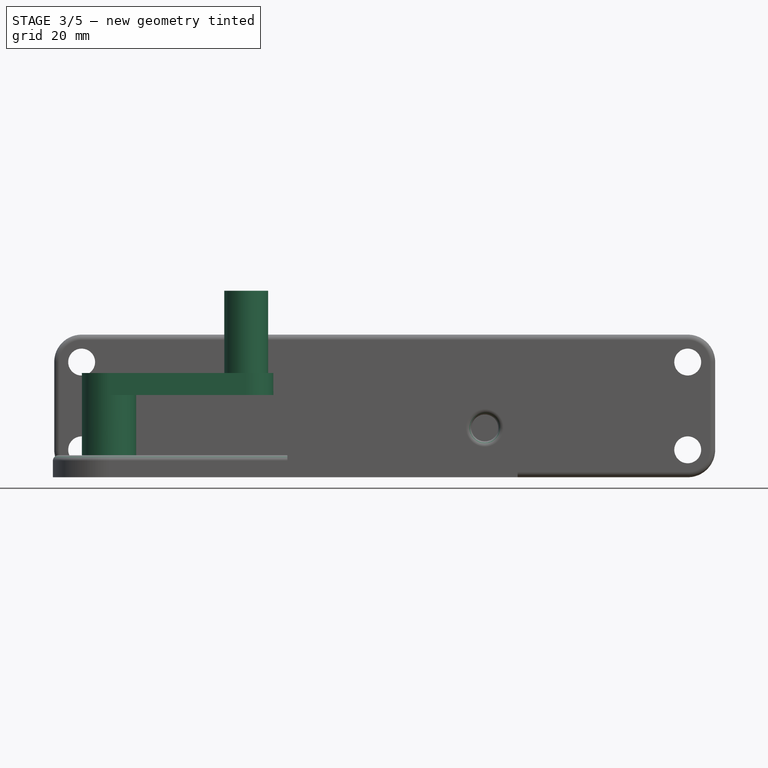
[diagram: stage 3 of 5 — front view after this stage's code; geometry added in this stage tinted green]
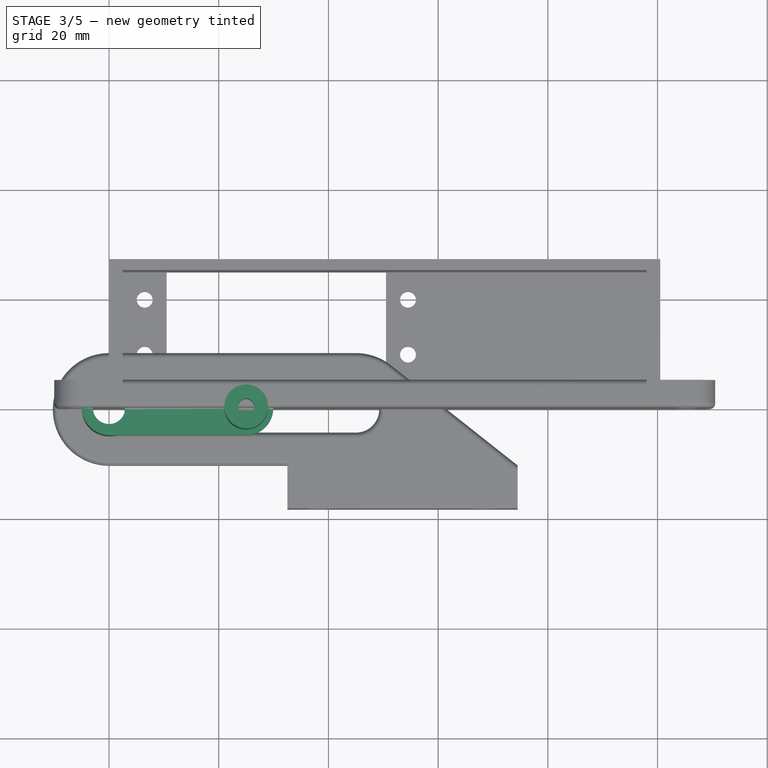
[diagram: stage 3 of 5 — top view after this stage's code; geometry added in this stage tinted green]
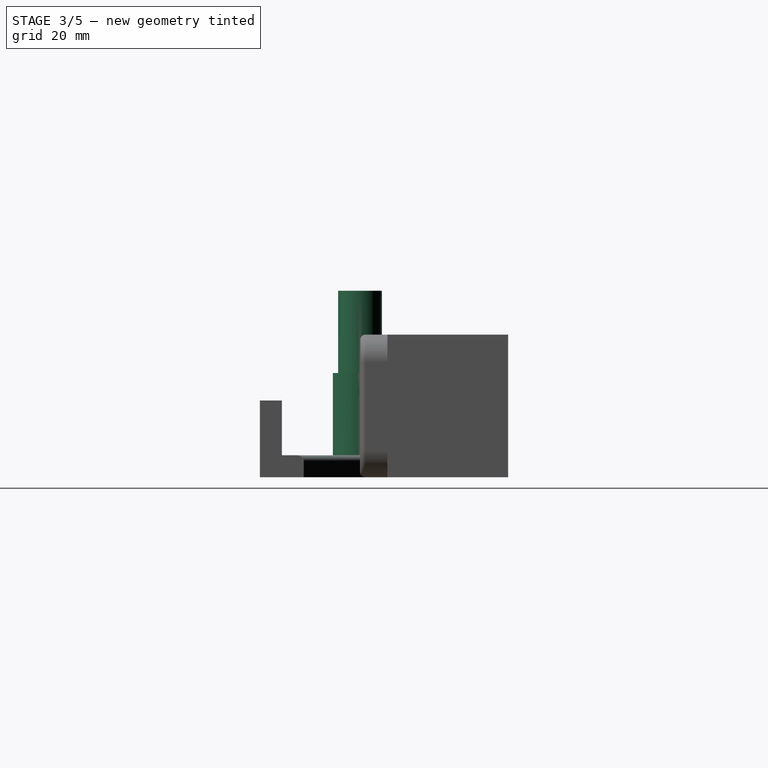
[diagram: stage 3 of 5 — right view after this stage's code; geometry added in this stage tinted green]
FEATURE [Sketcher::SketchObject] Sketch005
  AttachmentOffset = pos=(0,0,15) rot=(0,0,1;0rad)
  FullyConstrained = true
  MapMode = 5
  Placement = pos=(0,0,15) rot=(0,0,1;0rad)
  Support = -> [XY_Plane001]
  expr: .AttachmentOffset.Base.z = Spreadsheet.servoArmJoinLen
  expr: Constraints[10] = Spreadsheet.servoArmHeadHoleR
  expr: Constraints[7] = Spreadsheet.servoArmHeadOurterR
  expr: Constraints[8] = Spreadsheet.servoArmLen
  sketch-geometry (5):
    g0: ArcOfCircle CenterX=0 CenterY=0 CenterZ=0 NormalX=0 NormalY=0 NormalZ=1 AngleXU=0 Radius=4.95 StartAngle=1.5708 EndAngle=4.71239
    g1: ArcOfCircle CenterX=25 CenterY=0 CenterZ=0 NormalX=0 NormalY=0 NormalZ=1 AngleXU=0 Radius=4.95 StartAngle=4.71239 EndAngle=7.85398
    g2: LineSegment StartX=-9e-16 StartY=-4.95 StartZ=0 EndX=25 EndY=-4.95 EndZ=0
    g3: LineSegment StartX=25 StartY=4.95 StartZ=0 EndX=0 EndY=4.95 EndZ=0
    g4: Circle CenterX=0 CenterY=0 CenterZ=0 NormalX=0 NormalY=0 NormalZ=1 AngleXU=0 Radius=2.95
  constraints (11):
    c: Tangent(g0,g2) = -1.5708
    c: Tangent(g2,g1) = -1.5708
    c: Tangent(g1,g3) = -1.5708
    c: Tangent(g3,g0) = -1.5708
    c: Equal(g0,g1)
    c: Coincident(g0,g-1)
    c: PointOnObject(g1,g-1)
    c: Radius(g0) = 4.95
    c: DistanceX(g0,g1) = 25
    c: Coincident(g4,g0)
    c: Radius(g4) = 2.95
FEATURE [PartDesign::Pad] Pad005
  Direction = (0,0,1)
  Length = 4
  Length2 = 10
  Profile = -> Sketch005
  ReferenceAxis = -> Sketch005 [N_Axis]
  Type = 0
  expr: Length = Spreadsheet.servoArmThickness
FEATURE [Sketcher::SketchObject] Sketch006
  FullyConstrained = true
  MapMode = 5
  Placement = pos=(0,0,0) rot=(1,0,0;1.5708rad)
  Support = -> [XZ_Plane001]
  expr: Constraints[12] = Spreadsheet.servoArmHeadScrewR
  expr: Constraints[1] = Spreadsheet.servoArmThickness
  expr: Constraints[2] = Spreadsheet.servoArmHeadHoleR - Spreadsheet.servoArmHeadHoleOverLip
  expr: Constraints[3] = Spreadsheet.servoArmThickness
  expr: Constraints[8] = Spreadsheet.servoArmHeadOurterR - Spreadsheet.servoArmHeadHoleR + Spreadsheet.servoArmHeadHoleOverLip
  sketch-geometry (4):
    g0: ArcOfCircle CenterX=0 CenterY=4 CenterZ=0 NormalX=0 NormalY=0 NormalZ=1 AngleXU=0 Radius=2.75 StartAngle=2.14773 EndAngle=3.14159
    g1: LineSegment StartX=-2.75 StartY=4 StartZ=0 EndX=-4.95 EndY=4 EndZ=0
    g2: ArcOfCircle CenterX=0 CenterY=4 CenterZ=0 NormalX=0 NormalY=0 NormalZ=1 AngleXU=0 Radius=4.95 StartAngle=1.87867 EndAngle=3.14159
    g3: LineSegment StartX=-1.5 StartY=6.30489 StartZ=0 EndX=-1.5 EndY=8.71726 EndZ=0
  constraints (13):
    c: PointOnObject(g0,g-2)
    c: DistanceY(g-1,g0) = 4
    c: Radius(g0) = 2.75
    c: DistanceY(g-1,g0) = 4
    c: Coincident(g2,g0)
    c: Coincident(g2,g1)
    c: Horizontal(g1)
    c: Coincident(g1,g0)
    c: DistanceX(g1,g1) = 2.2
    c: Vertical(g3)
    c: Coincident(g2,g3)
    c: Coincident(g0,g3)
    c: DistanceX(g0,g0) = 1.5
FEATURE [Sketcher::SketchObject] Sketch007
  AttachmentOffset = pos=(0,0,15) rot=(0,0,1;0rad)
  FullyConstrained = true
  MapMode = 5
  Placement = pos=(0,0,15) rot=(0,0,1;0rad)
  Support = -> [XY_Plane001]
  expr: .AttachmentOffset.Base.z = Spreadsheet.servoArmJoinLen
  expr: Constraints[1] = Spreadsheet.servoArmLen
  expr: Constraints[2] = Spreadsheet.servoArmPushRodR
  expr: Constraints[4] = Spreadsheet.m3ScrewRTight
  sketch-geometry (2):
    g0: Circle CenterX=25 CenterY=0 CenterZ=0 NormalX=0 NormalY=0 NormalZ=1 AngleXU=0 Radius=4
    g1: Circle CenterX=25 CenterY=0 CenterZ=0 NormalX=0 NormalY=0 NormalZ=1 AngleXU=0 Radius=1.45
  constraints (5):
    c: PointOnObject(g0,g-1)
    c: DistanceX(g-1,g0) = 25
    c: Radius(g0) = 4
    c: Coincident(g1,g0)
    c: Radius(g1) = 1.45
FEATURE [PartDesign::Pad] Pad006
  BaseFeature = -> Pad005
  Direction = (0,0,1)
  Length = 19
  Length2 = 10
  Profile = -> Sketch007
  ReferenceAxis = -> Sketch007 [N_Axis]
  Type = 0
  expr: Length = Spreadsheet.servoArmPushRodLen - Spreadsheet.servoArmJoinLen
FEATURE [PartDesign::Body] Body005  label="Body005RpiBottomCover"
  Group = -> [Sketch014,Pad013,Sketch015,Pad014,Fillet004]
  Origin = -> Origin005
  Tip = -> Fillet004
FEATURE [Sketcher::SketchObject] Sketch016
  FullyConstrained = true
  MapMode = 5
  Support = -> [XY_Plane001]
  expr: Constraints[2] = Spreadsheet.servoArmHeadHoleR
  expr: Constraints[3] = Spreadsheet.servoArmHeadOurterR
  sketch-geometry (2):
    g0: Circle CenterX=0 CenterY=0 CenterZ=0 NormalX=0 NormalY=0 NormalZ=1 AngleXU=0 Radius=4.95
    g1: Circle CenterX=0 CenterY=0 CenterZ=0 NormalX=0 NormalY=0 NormalZ=1 AngleXU=0 Radius=2.95
  constraints (4):
    c: Coincident(g0,g-1)
    c: Coincident(g1,g0)
    c: Radius(g1) = 2.95
    c: Radius(g0) = 4.95
FEATURE [PartDesign::Pad] Pad015
  BaseFeature = -> Pad006
  Direction = (0,0,1)
  Length = 15
  Length2 = 10
  Profile = -> Sketch016
  ReferenceAxis = -> Sketch016 [N_Axis]
  Type = 0
  expr: Length = Spreadsheet.servoArmJoinLen
FEATURE [PartDesign::Revolution] Revolution
  Angle = 10
  Axis = (0,-2e-16,1)
  Base = (0,0,0)
  BaseFeature = -> Pad015
  Profile = -> Sketch008
  ReferenceAxis = -> Sketch008 [V_Axis]
  Reversed = true
FEATURE [PartDesign::Body] Body001  label="Body001ServoArm"
  Group = -> [Sketch005,Pad005,Sketch006,Sketch007,Pad006,Sketch008,Sketch016,Pad015,Revolution,PolarPattern]
  Origin = -> Origin001
  Tip = -> PolarPattern
FEATURE [PartDesign::Fillet] Fillet005
  Base = -> Pad012 [Face13,Face20,Edge45,Edge44,Edge23]
  BaseFeature = -> Pad012
  Radius = 1
  SupportTransform = false
  UseAllEdges = false
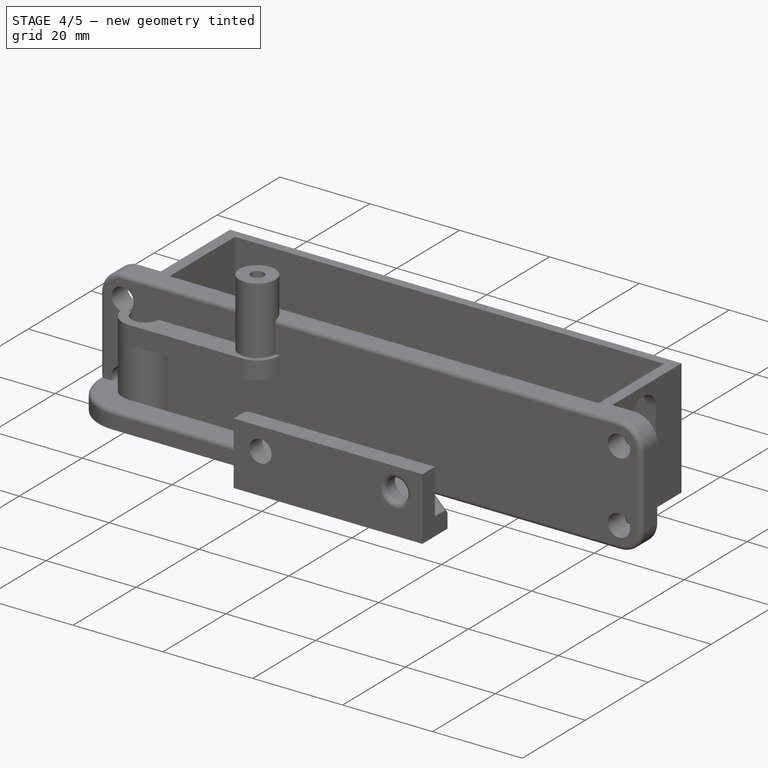
[diagram: stage 4 of 5 — iso view after this stage's code; geometry added in this stage tinted green]
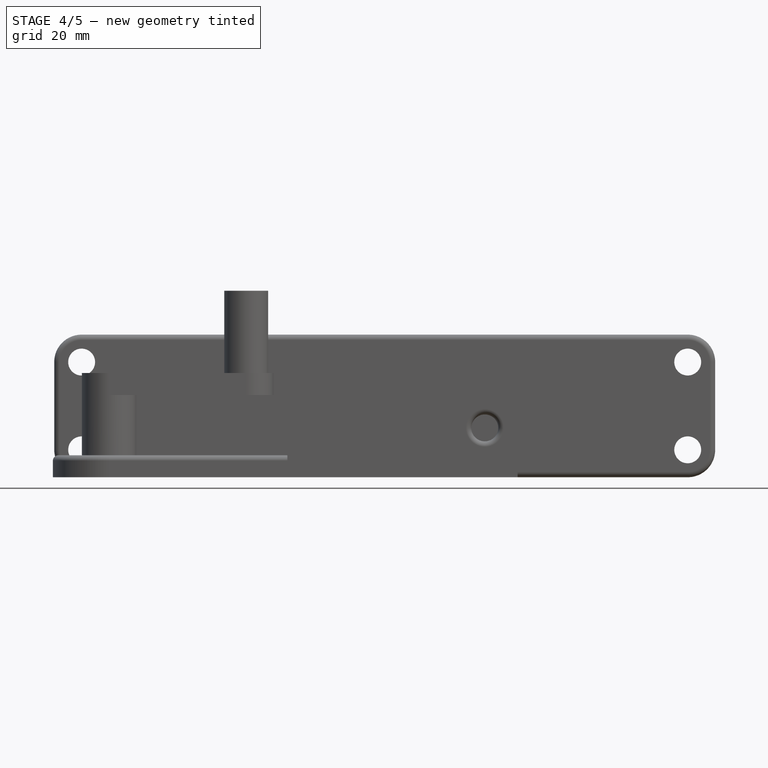
[diagram: stage 4 of 5 — front view after this stage's code; geometry added in this stage tinted green]
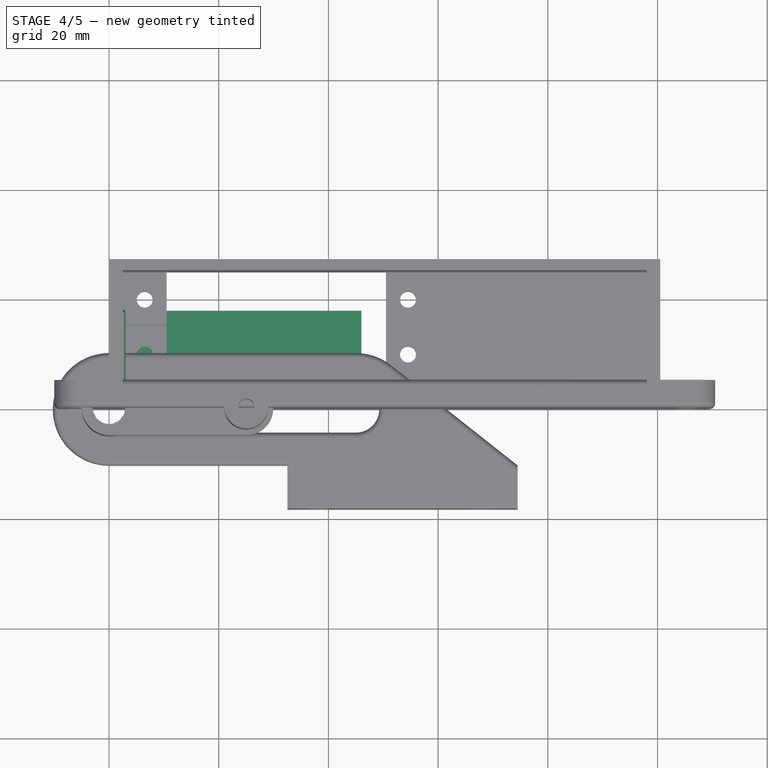
[diagram: stage 4 of 5 — top view after this stage's code; geometry added in this stage tinted green]
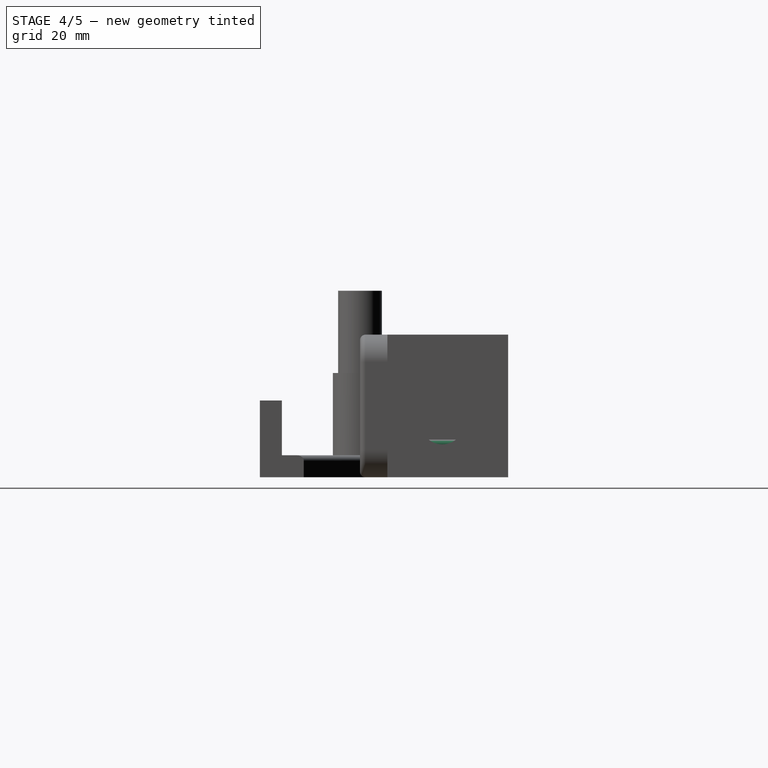
[diagram: stage 4 of 5 — right view after this stage's code; geometry added in this stage tinted green]
FEATURE [Sketcher::SketchObject] Sketch014
  FullyConstrained = true
  MapMode = 5
  Support = -> [XY_Plane005]
  expr: Constraints[10] = Spreadsheet.raspberryPiWidth
  expr: Constraints[9] = Spreadsheet.raspberryPiHeight
  sketch-geometry (4):
    g0: LineSegment StartX=0 StartY=0 StartZ=0 EndX=46 EndY=0 EndZ=0
    g1: LineSegment StartX=46 StartY=0 StartZ=0 EndX=46 EndY=18 EndZ=0
    g2: LineSegment StartX=46 StartY=18 StartZ=0 EndX=0 EndY=18 EndZ=0
    g3: LineSegment StartX=0 StartY=18 StartZ=0 EndX=0 EndY=0 EndZ=0
  constraints (11):
    c: Coincident(g0,g1)
    c: Coincident(g1,g2)
    c: Coincident(g2,g3)
    c: Coincident(g3,g0)
    c: Horizontal(g0)
    c: Horizontal(g2)
    c: Vertical(g1)
    c: Vertical(g3)
    c: Coincident(g0,g-1)
    c: DistanceX(g2,g2) = 46
    c: DistanceY(g1,g1) = 18
FEATURE [PartDesign::Pad] Pad013
  Direction = (0,0,1)
  Length = 2
  Length2 = 10
  Profile = -> Sketch014
  ReferenceAxis = -> Sketch014 [N_Axis]
  Type = 0
FEATURE [Sketcher::SketchObject] Sketch015
  FullyConstrained = true
  MapMode = 5
  Support = -> [XY_Plane005]
  expr: Constraints[9] = Spreadsheet.raspberryPiWidth
  sketch-geometry (4):
    g0: LineSegment StartX=0 StartY=18 StartZ=0 EndX=3 EndY=18 EndZ=0
    g1: LineSegment StartX=3 StartY=18 StartZ=0 EndX=3 EndY=0 EndZ=0
    g2: LineSegment StartX=3 StartY=0 StartZ=0 EndX=0 EndY=0 EndZ=0
    g3: LineSegment StartX=0 StartY=0 StartZ=0 EndX=0 EndY=18 EndZ=0
  constraints (11):
    c: Coincident(g0,g1)
    c: Coincident(g1,g2)
    c: Coincident(g2,g3)
    c: Coincident(g3,g0)
    c: Horizontal(g0)
    c: Horizontal(g2)
    c: Vertical(g1)
    c: Vertical(g3)
    c: Coincident(g2,g-1)
    c: DistanceY(g3,g3) = 18
    c: DistanceX(g0,g0) = 3
FEATURE [PartDesign::Pad] Pad014
  BaseFeature = -> Pad013
  Direction = (0,0,1)
  Length = 7
  Length2 = 10
  Profile = -> Sketch015
  ReferenceAxis = -> Sketch015 [N_Axis]
  Type = 0
FEATURE [PartDesign::Fillet] Fillet004
  Base = -> Pad014 [Face7,Edge5,Face11]
  BaseFeature = -> Pad014
  Radius = 1
  SupportTransform = false
  UseAllEdges = false
FEATURE [PartDesign::PolarPattern] PolarPattern
  Angle = 360
  Axis = -> Sketch008 [V_Axis]
  BaseFeature = -> Revolution
  Occurrences = 12
  Originals = -> [Revolution]
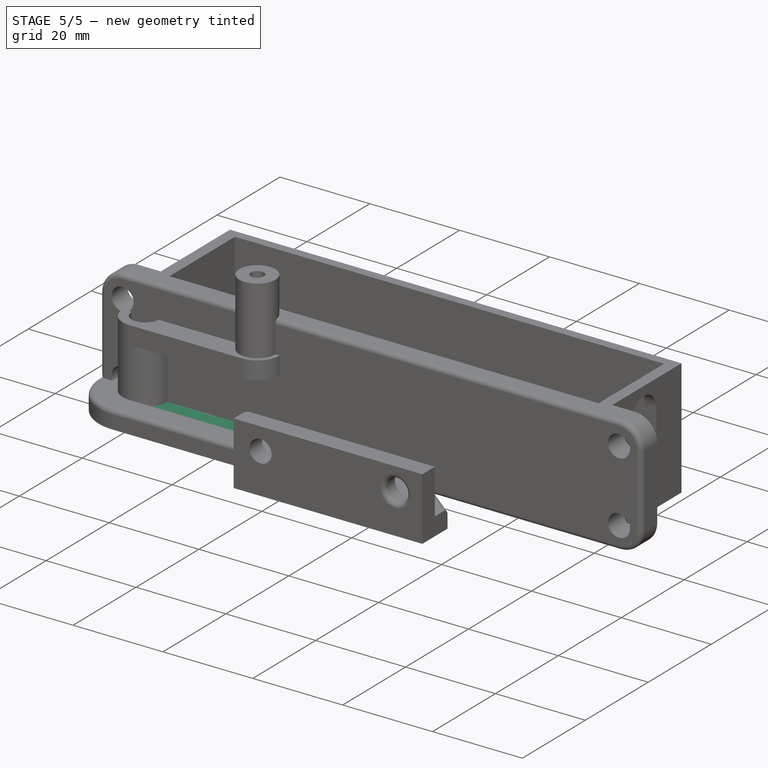
[diagram: stage 5 of 5 — iso view after this stage's code; geometry added in this stage tinted green]
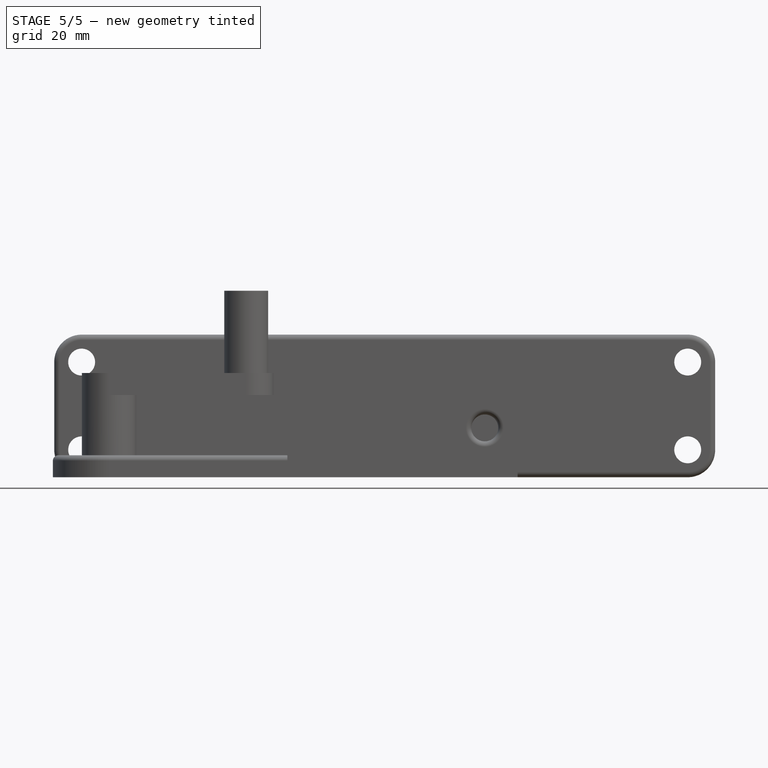
[diagram: stage 5 of 5 — front view after this stage's code; geometry added in this stage tinted green]
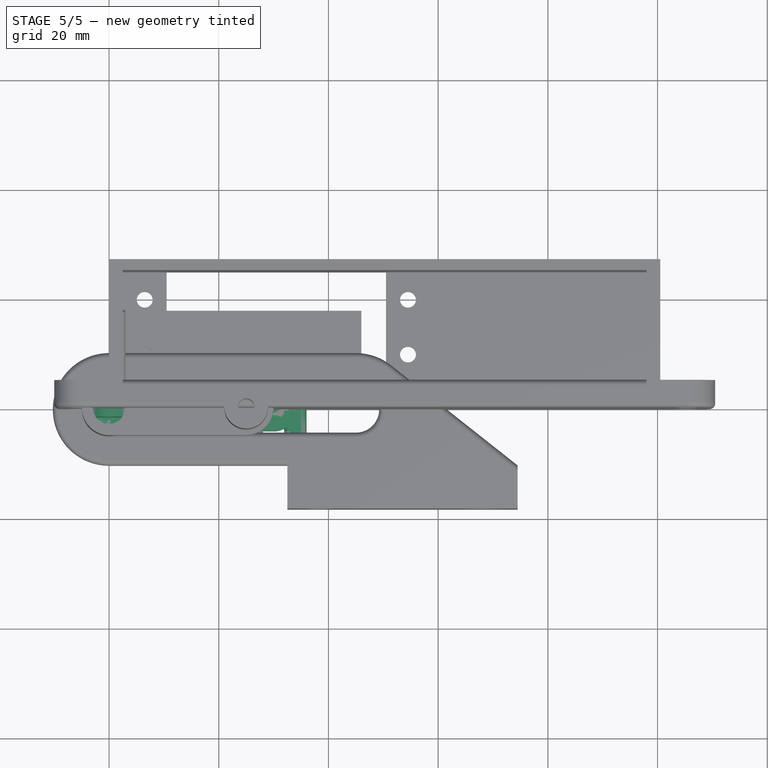
[diagram: stage 5 of 5 — top view after this stage's code; geometry added in this stage tinted green]
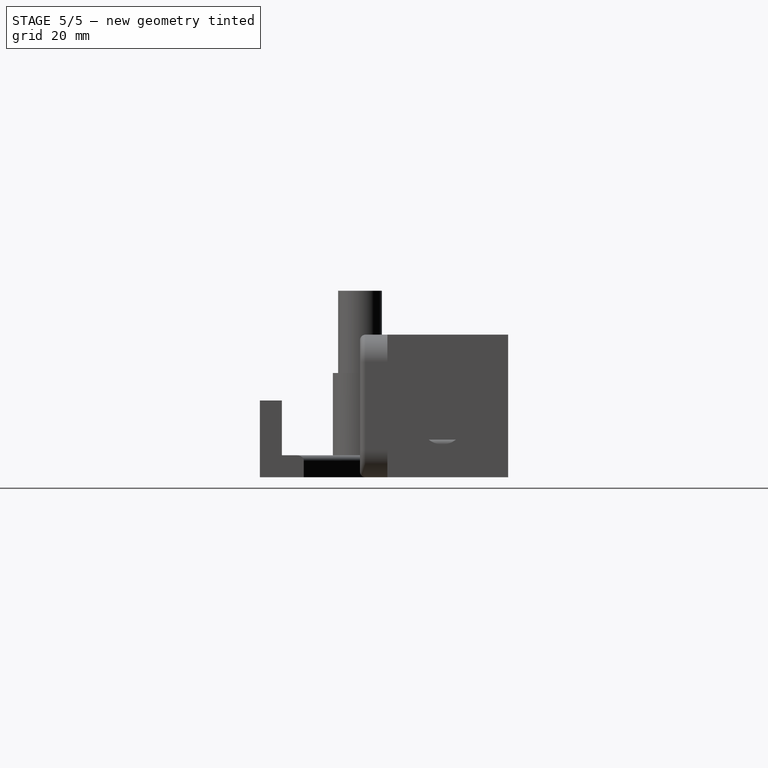
[diagram: stage 5 of 5 — right view after this stage's code; geometry added in this stage tinted green]
FEATURE [Sketcher::SketchObject] Sketch008  label="Sketch008RevHolderSqueeze"
  FullyConstrained = true
  MapMode = 5
  Placement = pos=(0,0,0) rot=(1,0,0;1.5708rad)
  Support = -> [XZ_Plane001]
  expr: Constraints[10] = Spreadsheet.servoArmHeadHoleR
  expr: Constraints[11] = Spreadsheet.servoArmJoinLen
  expr: Constraints[9] = 0.1
  sketch-geometry (4):
    g0: LineSegment StartX=2.95 StartY=0 StartZ=0 EndX=2.85 EndY=0 EndZ=0
    g1: LineSegment StartX=2.85 StartY=0 StartZ=0 EndX=2.85 EndY=15 EndZ=0
    g2: LineSegment StartX=2.85 StartY=15 StartZ=0 EndX=2.95 EndY=15 EndZ=0
    g3: LineSegment StartX=2.95 StartY=15 StartZ=0 EndX=2.95 EndY=0 EndZ=0
  constraints (12):
    c: Coincident(g0,g1)
    c: Coincident(g1,g2)
    c: Coincident(g2,g3)
    c: Coincident(g3,g0)
    c: Horizontal(g0)
    c: Horizontal(g2)
    c: Vertical(g1)
    c: Vertical(g3)
    c: PointOnObject(g0,g-1)
    c: DistanceX(g2,g2) = 0.1
    c: DistanceX(g-1,g0) = 2.95
    c: DistanceY(g1,g1) = 15
FEATURE [Sketcher::SketchObject] Sketch009
  FullyConstrained = true
  MapMode = 5
  Support = -> [XY_Plane002]
  expr: Constraints[13] = Spreadsheet.m3PassFreeR
  expr: Constraints[2] = Spreadsheet.servoArmPushRodR
  expr: Constraints[3] = Spreadsheet.servoArmPushRodR
  expr: Constraints[4] = Spreadsheet.controlArmLen
  sketch-geometry (6):
    g0: ArcOfCircle CenterX=0 CenterY=0 CenterZ=0 NormalX=0 NormalY=0 NormalZ=1 AngleXU=0 Radius=4 StartAngle=1.5708 EndAngle=4.71239
    g1: ArcOfCircle CenterX=30 CenterY=0 CenterZ=0 NormalX=0 NormalY=0 NormalZ=1 AngleXU=0 Radius=4 StartAngle=4.71239 EndAngle=7.85398
    g2: LineSegment StartX=-6e-16 StartY=4 StartZ=0 EndX=30 EndY=4 EndZ=0
    g3: LineSegment StartX=-7e-16 StartY=-4 StartZ=0 EndX=30 EndY=-4 EndZ=0
    g4: Circle CenterX=0 CenterY=0 CenterZ=0 NormalX=0 NormalY=0 NormalZ=1 AngleXU=0 Radius=1.95
    g5: Circle CenterX=30 CenterY=0 CenterZ=0 NormalX=0 NormalY=0 NormalZ=1 AngleXU=0 Radius=1.95
  constraints (14):
    c: Coincident(g0,g-1)
    c: PointOnObject(g1,g-1)
    c: Radius(g0) = 4
    c: Radius(g1) = 4
    c: DistanceX(g0,g1) = 30
    c: Horizontal(g3)
    c: Tangent(g0,g2) = 1.5708
    c: Coincident(g1,g3)
    c: Tangent(g1,g2) = 1.5708
    c: Tangent(g0,g3) = -1.5708
    c: Coincident(g4,g0)
    c: Coincident(g5,g1)
    c: Equal(g5,g4)
    c: Radius(g4) = 1.95
FEATURE [PartDesign::Pad] Pad007
  Direction = (0,0,1)
  Length = 3
  Length2 = 10
  Profile = -> Sketch009
  ReferenceAxis = -> Sketch009 [N_Axis]
  Type = 0
FEATURE [PartDesign::Body] Body002  label="Body002Arm_NotUsed"
  Group = -> [Sketch009,Pad007]
  Origin = -> Origin002
  Tip = -> Pad007
FEATURE [Sketcher::SketchObject] Sketch010
  FullyConstrained = true
  MapMode = 5
  Support = -> [XY_Plane003]
  expr: Constraints[11] = Spreadsheet.bottomPlatWidth
  expr: Constraints[12] = Spreadsheet.bottomPlatScrewY
  expr: Constraints[13] = Spreadsheet.bottomPlatScrewY
  expr: Constraints[14] = Spreadsheet.m3PassFreeR
  expr: Constraints[15] = Spreadsheet.m3PassFreeR
  expr: Constraints[9] = Spreadsheet.bottomPlatHeight
  sketch-geometry (6):
    g0: LineSegment StartX=-4 StartY=2 StartZ=0 EndX=36 EndY=2 EndZ=0
    g1: LineSegment StartX=36 StartY=2 StartZ=0 EndX=36 EndY=-8 EndZ=0
    g2: LineSegment StartX=36 StartY=-8 StartZ=0 EndX=-4 EndY=-8 EndZ=0
    g3: LineSegment StartX=-4 StartY=-8 StartZ=0 EndX=-4 EndY=2 EndZ=0
    g4: Circle CenterX=2 CenterY=-4 CenterZ=0 NormalX=0 NormalY=0 NormalZ=1 AngleXU=0 Radius=1.95
    g5: Circle CenterX=30 CenterY=-4 CenterZ=0 NormalX=0 NormalY=0 NormalZ=1 AngleXU=0 Radius=1.95
  constraints (18):
    c: Coincident(g0,g1)
    c: Coincident(g1,g2)
    c: Coincident(g2,g3)
    c: Coincident(g3,g0)
    c: Horizontal(g2)
    c: Vertical(g1)
    c: Vertical(g3)
    c: DistanceX(g0,g4) = 6
    c: DistanceX(g5,g0) = 6
    c: DistanceY(g3,g3) = 10
    c: Horizontal(g0)
    c: DistanceX(g0,g0) = 40
    c: DistanceY(g5,g0) = 6
    c: DistanceY(g4,g0) = 6
    c: Radius(g4) = 1.95
    c: Radius(g5) = 1.95
    c: DistanceX(g0,g-1) = 4
    c: DistanceY(g-1,g0) = 2
FEATURE [Sketcher::SketchObject] Sketch011
  FullyConstrained = true
  MapMode = 5
  Placement = pos=(0,0,0) rot=(1,0,0;1.5708rad)
  Support = -> [XZ_Plane003]
  expr: Constraints[11] = Spreadsheet.m3ScrewRTight
  expr: Constraints[8] = Spreadsheet.servoArmPushRodR
  expr: Constraints[9] = Spreadsheet.bottomPlatJointHeight
  sketch-geometry (5):
    g0: ArcOfCircle CenterX=0 CenterY=9 CenterZ=0 NormalX=0 NormalY=0 NormalZ=1 AngleXU=0 Radius=4 StartAngle=4.6e-15 EndAngle=3.14159
    g1: LineSegment StartX=4 StartY=9 StartZ=0 EndX=4 EndY=0 EndZ=0
    g2: LineSegment StartX=4 StartY=0 StartZ=0 EndX=-4 EndY=0 EndZ=0
    g3: LineSegment StartX=-4 StartY=0 StartZ=0 EndX=-4 EndY=9 EndZ=0
    g4: Circle CenterX=0 CenterY=9 CenterZ=0 NormalX=0 NormalY=0 NormalZ=1 AngleXU=0 Radius=1.45
  constraints (13):
    c: PointOnObject(g0,g-2)
    c: Coincident(g1,g2)
    c: Coincident(g2,g3)
    c: Horizontal(g2)
    c: Vertical(g1)
    c: Vertical(g3)
    c: Tangent(g0,g3) = 1.5708
    c: Tangent(g0,g1) = 1.5708
    c: Radius(g0) = 4
    c: DistanceY(g-1,g0) = 9
    c: Coincident(g4,g0)
    c: Radius(g4) = 1.45
    c: PointOnObject(g1,g-1)
FEATURE [PartDesign::Pad] Pad009
  Direction = (0,-1,-2e-16)
  Length = 3
  Length2 = 10
  Midplane = true
  Placement = pos=(0,0,0) rot=(1,0,0;1.5708rad)
  Profile = -> Sketch011
  ReferenceAxis = -> Sketch011 [N_Axis]
  Type = 0
  expr: Length = Spreadsheet.bottomPlatPad
FEATURE [PartDesign::Pad] Pad010
  BaseFeature = -> Pad009
  Direction = (0,0,1)
  Length = 3
  Length2 = 10
  Placement = pos=(0,0,0) rot=(1,0,0;1.5708rad)
  Profile = -> Sketch010
  ReferenceAxis = -> Sketch010 [N_Axis]
  Type = 0
FEATURE [PartDesign::Fillet] Fillet
  Base = -> Pad010 [Edge21,Edge20]
  BaseFeature = -> Pad010
  Placement = pos=(0,0,0) rot=(1,0,0;1.5708rad)
  Radius = 1
  SupportTransform = false
  UseAllEdges = false
FEATURE [PartDesign::Fillet] Fillet001
  Base = -> Fillet [Edge11,Edge12]
  BaseFeature = -> Fillet
  Placement = pos=(0,0,0) rot=(1,0,0;1.5708rad)
  Radius = 1
  SupportTransform = false
  UseAllEdges = false
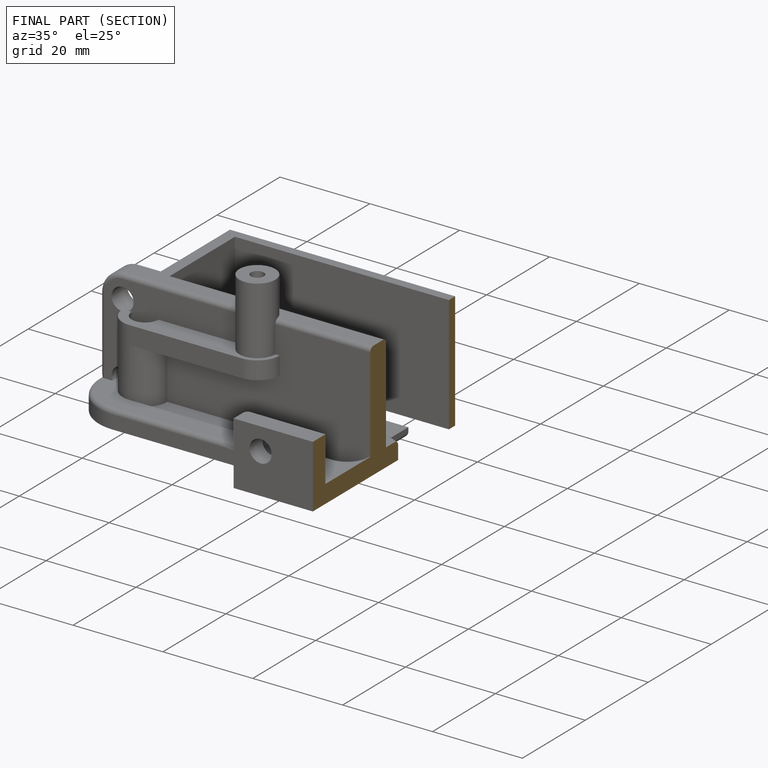
[diagram: finished part — half-section view (interior)]
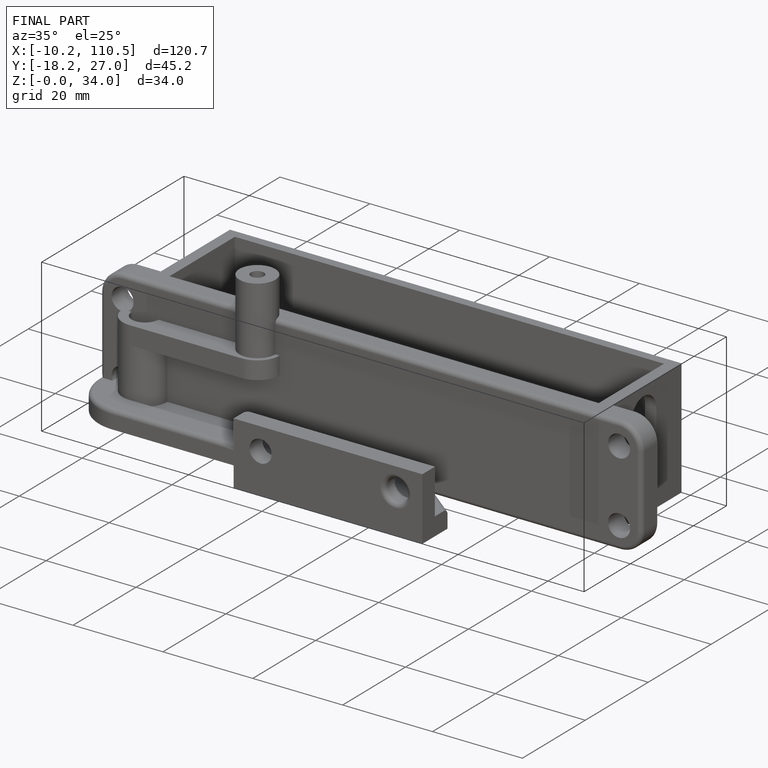
[diagram: finished part — iso view with bounding-box wireframe]
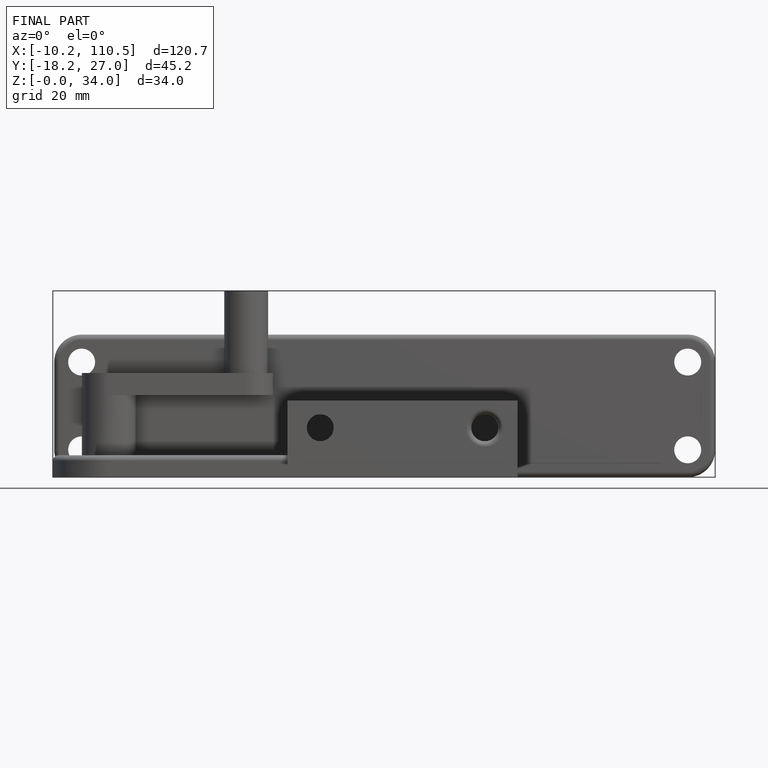
[diagram: finished part — front view with bounding-box wireframe]
